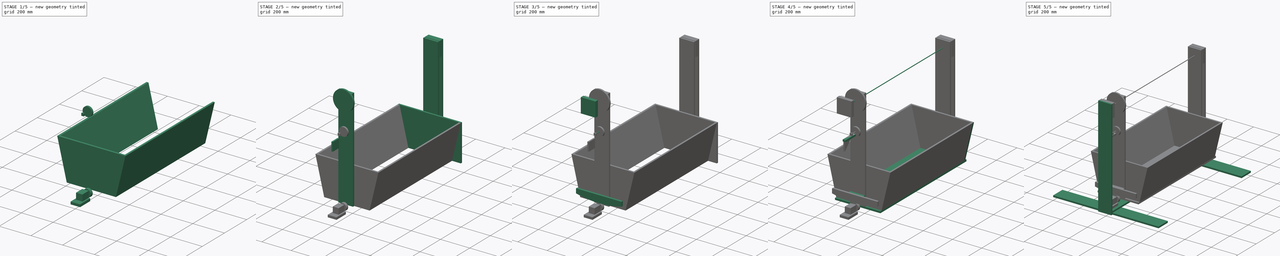
[diagram: build sequence overview — one tinted view per stage of 5, left to right]
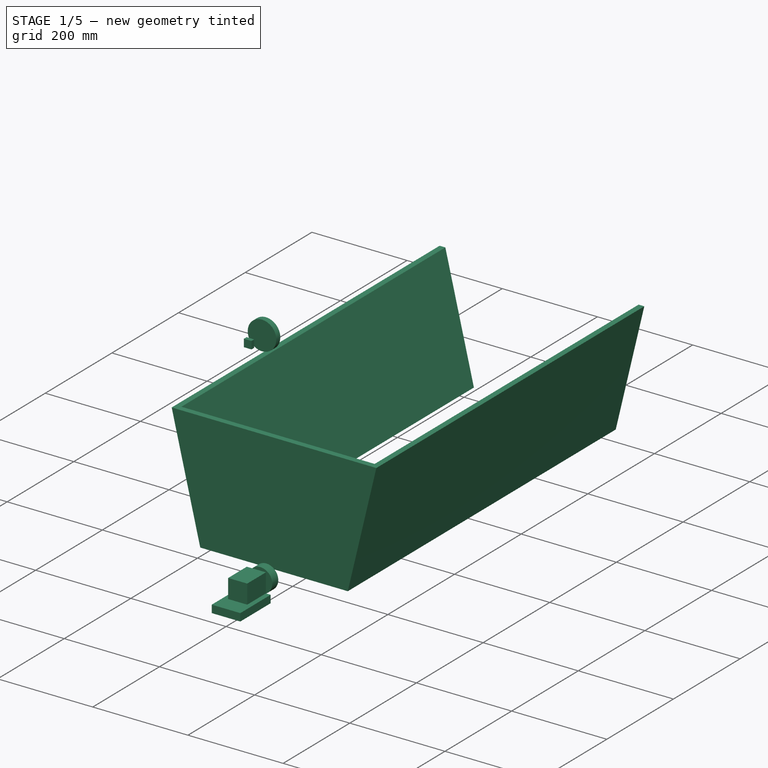
[diagram: stage 1 of 5 — iso view after this stage's code; geometry added in this stage tinted green]
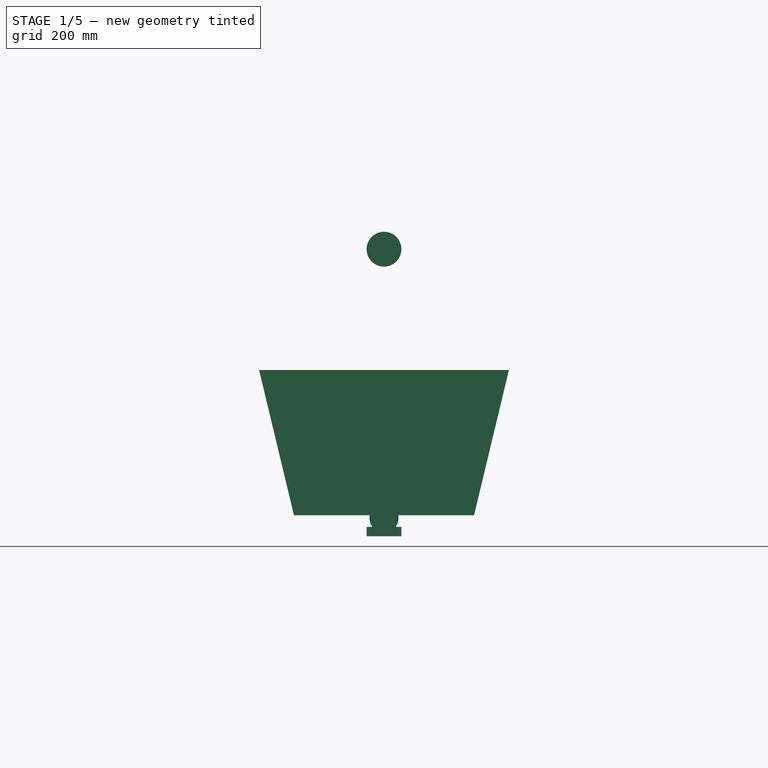
[diagram: stage 1 of 5 — front view after this stage's code; geometry added in this stage tinted green]
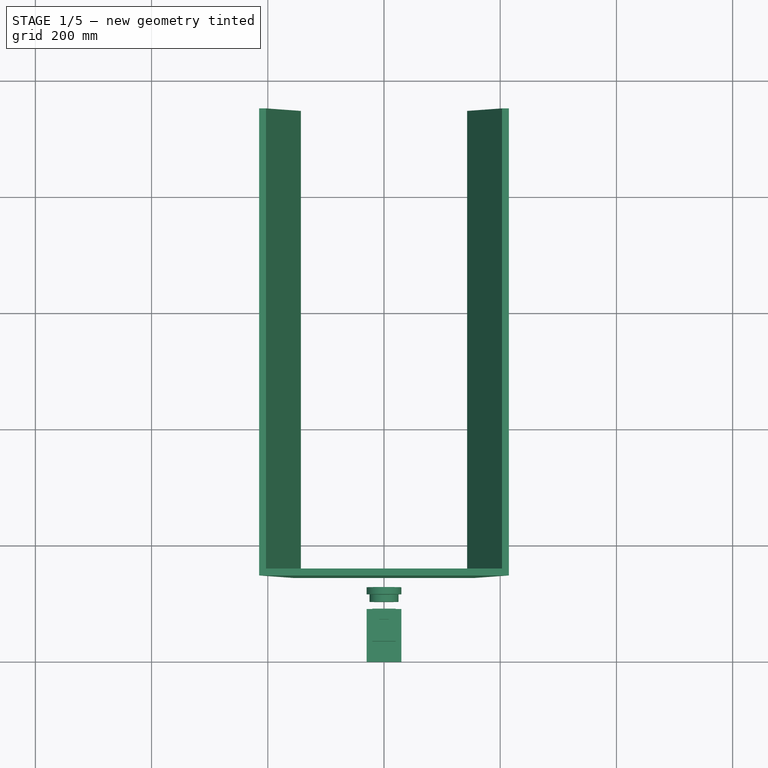
[diagram: stage 1 of 5 — top view after this stage's code; geometry added in this stage tinted green]
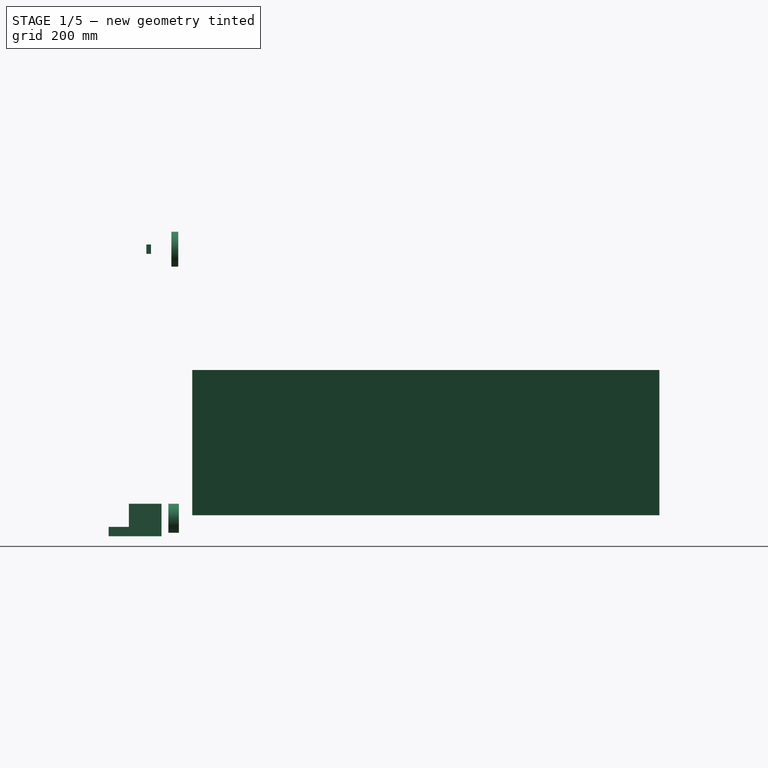
[diagram: stage 1 of 5 — right view after this stage's code; geometry added in this stage tinted green]
FCSTD DOCUMENT  (FreeCAD 0.15R4671 (Git))
Label: Wiege_CAD_Model
License: All rights reserved
LicenseURL: http://en.wikipedia.org/wiki/All_rights_reserved
objects: Part::Box×22, App::DocumentObjectGroup×19, Sketcher::SketchObject×16, PartDesign::Pocket×13, Part::Cylinder×5, App::FeaturePython×4, Drawing::FeatureViewPython×4, PartDesign::Pad×3, Drawing::FeaturePage×3, Part::MultiCommon×1
note: 80 computed .brp shape members not serialized (recipe doc carries the construction recipe); baked Part::Feature solids carry a one-line shape summary decoded from their .brp

FEATURE [App::DocumentObjectGroup] Gruppe006  label="Drehachse_Gruppe"
  Group = -> [Cylinder]
FEATURE [Part::Box] Box016  label="Wand L1"
  Height = 250
  Length = 430
  Placement = pos=(185,144,60) rot=(0,0,1;0rad)
  Width = 12
FEATURE [Sketcher::SketchObject] Sketch012  label="Zuschnitt_Wand_L1"
  Placement = pos=(185,144,60) rot=(1,0,0;1.5708rad)
  Support = -> Box016 [Face3]
  sketch-geometry (6):
    g0: LineSegment StartX=0 StartY=250 StartZ=0 EndX=0 EndY=0 EndZ=0
    g1: LineSegment StartX=0 StartY=0 StartZ=0 EndX=60 EndY=0 EndZ=0
    g2: LineSegment StartX=60 StartY=0 StartZ=0 EndX=0 EndY=250 EndZ=0
    g3: LineSegment StartX=430 StartY=250 StartZ=0 EndX=430 EndY=0 EndZ=0
    g4: LineSegment StartX=430 StartY=0 StartZ=0 EndX=370 EndY=0 EndZ=0
    g5: LineSegment StartX=370 StartY=0 StartZ=0 EndX=430 EndY=250 EndZ=0
  constraints (12):
    c: Coincident(g0,g-1)
    c: Vertical(g0)
    c: Coincident(g0,g1)
    c: Horizontal(g1)
    c: Coincident(g1,g2)
    c: Coincident(g2,g0)
    c: Vertical(g3)
    c: Coincident(g3,g4)
    c: PointOnObject(g4,g-1)
    c: Horizontal(g4)
    c: Coincident(g4,g5)
    c: Coincident(g5,g3)
FEATURE [PartDesign::Pocket] Pocket012  label="Tasche_Zuschnitt_Wand_L1"
  Length = 12
  Placement = pos=(185,144,60) rot=(0,0,1;0rad)
  Sketch = -> Sketch012
  Type = 0
FEATURE [Part::Box] Box027  label="Potentiometer_Block"
  Height = 16
  Length = 16
  Placement = pos=(392,65,510) rot=(0,0,1;0rad)
  Width = 8
FEATURE [Part::Cylinder] Cylinder003  label="Poti_Antrieb"
  Angle = 360
  Height = 12
  Placement = pos=(400,120,518) rot=(1,0,0;1.5708rad)
  Radius = 30
FEATURE [Part::Box] Box028  label="Motor_Block"
  Height = 40
  Length = 40
  Placement = pos=(380,35,40) rot=(0,0,1;0rad)
  Width = 56
FEATURE [Part::Cylinder] Cylinder004  label="Antriebsrad"
  Angle = 360
  Height = 18
  Placement = pos=(400,121,55) rot=(1,0,0;1.5708rad)
  Radius = 25
FEATURE [App::DocumentObjectGroup] Group002  label="Basis_Objekte_G"
  Group = -> [Box010,Box006]
FEATURE [App::DocumentObjectGroup] Gruppe002  label="Träger_Gruppe_G"
  Group = -> [Pocket002,Pocket003,Group002,Box009]
FEATURE [App::DocumentObjectGroup] Group003  label="Basis_Objekte_H"
  Group = -> [Box012,Box011,Box013]
FEATURE [App::DocumentObjectGroup] Gruppe003  label="Träger_Gruppe_H"
  Group = -> [Pocket005,Pocket006,Group003]
FEATURE [App::DocumentObjectGroup] Group004  label="Basis_Objekte_C"
  Group = -> [Box014]
FEATURE [App::DocumentObjectGroup] Gruppe004  label="Halterung_Gruppe_C"
  Group = -> [Pocket007,Group004]
FEATURE [App::DocumentObjectGroup] Group005  label="Basis_Objekte_D"
  Group = -> [Box021,Box015]
FEATURE [App::DocumentObjectGroup] Gruppe005  label="Halterung_Gruppe_D"
  Group = -> [Pocket008,Pocket010,Group005]
FEATURE [App::DocumentObjectGroup] Group006  label="Basis_Objekte_Kiste"
  Group = -> [Box016,Box024]
FEATURE [App::DocumentObjectGroup] Group007  label="Basis_Objekte_W"
  Group = -> [Box023,Cylinder003,Cylinder001,Box027]
FEATURE [App::DocumentObjectGroup] Gruppe008  label="Winkelabnehmer_Gruppe"
  Group = -> [Pocket009,Box022,Pocket011,Pad001,Pocket014,Group007]
FEATURE [App::DocumentObjectGroup] Group008  label="Basis_Objekte_Motor"
  Group = -> [Box028]
FEATURE [Sketcher::SketchObject] Sketch019  label="Sketch_Wand_K1_K2"
  Placement = pos=(185,156,60) rot=(0,0.707107,0.707107;3.14159rad)
  Support = -> Pocket012 [Face4]
  sketch-geometry (8):
    g0: LineSegment StartX=-60 StartY=0 StartZ=0 EndX=-72 EndY=0 EndZ=0
    g1: LineSegment StartX=-72 StartY=0 StartZ=0 EndX=-12 EndY=250 EndZ=0
    g2: LineSegment StartX=-12 StartY=250 StartZ=0 EndX=0 EndY=250 EndZ=0
    g3: LineSegment StartX=0 StartY=250 StartZ=0 EndX=-60 EndY=0 EndZ=0
    g4: LineSegment StartX=-370 StartY=0 StartZ=0 EndX=-430 EndY=250 EndZ=0
    g5: LineSegment StartX=-430 StartY=250 StartZ=0 EndX=-418 EndY=250 EndZ=0
    g6: LineSegment StartX=-418 StartY=250 StartZ=0 EndX=-358 EndY=0 EndZ=0
    g7: LineSegment StartX=-358 StartY=0 StartZ=0 EndX=-370 EndY=0 EndZ=0
  constraints (13):
    c: PointOnObject(g0,g-1)
    c: Horizontal(g0)
    c: Coincident(g0,g1)
    c: Coincident(g1,g2)
    c: Horizontal(g2)
    c: Coincident(g2,g3)
    c: Coincident(g3,g0)
    c: Coincident(g4,g5)
    c: Horizontal(g5)
    c: Coincident(g5,g6)
    c: Coincident(g6,g7)
    c: Coincident(g7,g4)
    c: Horizontal(g7)
FEATURE [PartDesign::Pad] Pad  label="Pad_Wand_K1_K2"
  Length = 792
  Length2 = 100
  Placement = pos=(185,144,60) rot=(0,0,1;0rad)
  Sketch = -> Sketch019
  Type = 0
FEATURE [App::DocumentObjectGroup] Gruppe007  label="Kiste_Gruppe"
  Group = -> [Box020,Pocket012,Pocket013,Box026,Common,Group006,Pad]
FEATURE [Sketcher::SketchObject] Sketch020  label="Bohrloch_Antriebsrad"
  Placement = pos=(400,121,55) rot=(-1,0,0;1.5708rad)
  Support = -> Cylinder004 [Face3]
  sketch-geometry (1):
    g0: Circle CenterX=0 CenterY=0 CenterZ=0 NormalX=0 NormalY=0 NormalZ=1 Radius=3
  constraints (1):
    c: Coincident(g0,g-1)
FEATURE [PartDesign::Pocket] Pocket015  label="Tasche_Bohrloch_Antriebsrad"
  Length = 20
  Placement = pos=(400,121,55) rot=(1,0,0;1.5708rad)
  Sketch = -> Sketch020
  Type = 0
FEATURE [Part::Box] Box029  label="Motor_Unterlage"
  Height = 16
  Length = 60
  Placement = pos=(370,0,24) rot=(0,0,1;0rad)
  Width = 91
FEATURE [App::DocumentObjectGroup] Gruppe009  label="Antrieb_Gruppe"
  Group = -> [Pad002,Cylinder004,Group008,Pocket015,Box029]
FEATURE [App::DocumentObjectGroup] Group  label="Wiege"
  Group = -> [Gruppe,Gruppe002,Gruppe003,Gruppe004,Gruppe005,Gruppe006,Gruppe007,Gruppe008,Gruppe009]
FEATURE [App::FeaturePython] Section  label="Antrieb_Section"  # WARN: FeaturePython — macro-defined, semantics opaque (R4)
  Objects = -> [Group]
  OnlySolids = true
  Placement = pos=(332.702,99.2869,302.305) rot=(1,0,0;1.5708rad)
FEATURE [App::FeaturePython] Section001  label="Front_Section"  # WARN: FeaturePython — macro-defined, semantics opaque (R4)
  Objects = -> [Group]
  OnlySolids = true
  Placement = pos=(0,-906.259,296.188) rot=(1,0,0;1.5708rad)
FEATURE [App::FeaturePython] Section002  label="Seite_Section"  # WARN: FeaturePython — macro-defined, semantics opaque (R4)
  Objects = -> [Group,Box,Box001,Box002]
  OnlySolids = true
  Placement = pos=(898.959,489.482,306.294) rot=(0,1,0;1.5708rad)
FEATURE [Drawing::FeatureViewPython] View002  label="Rechts"  # drawing view (typed FeaturePython)
  FontSize = 12
  LineWidth = 0.35
  RenderingMode = 1
  Rotation = 270
  Scale = 0.2
  ShowCut = false
  Source = -> Section002
  ViewResult = <blob: 8508 chars omitted>
  Visible = true
  X = 100
  Y = 200
FEATURE [Drawing::FeaturePage] Page001  label="Seite"
  EditableTexts = Marc Baumgartner | 11.08.2015 | 11.08.2015 | 1:5 | 1 | Kinderwiege mit Antrieb | Ansicht von Rechts
  Group = -> [View002]
  Template = C:/Program Files/FreeCAD 0.15/data/Mod/Drawing/Templates/A3_Landscape.svg
FEATURE [App::FeaturePython] Section003  label="Oben_Section"  # WARN: FeaturePython — macro-defined, semantics opaque (R4)
  Objects = -> [Group,Box,Box001,Box002]
  OnlySolids = true
  Placement = pos=(25.8079,-68.9257,1200) rot=(0,0,1;1.5708rad)
FEATURE [App::DocumentObjectGroup] Group009  label="Sections"
  Group = -> [Section,Section001,Section002,Section003]
FEATURE [Drawing::FeatureViewPython] View004  label="Top"  # drawing view (typed FeaturePython)
  FontSize = 12
  LineWidth = 0.35
  RenderingMode = 1
  Rotation = 90
  Scale = 0.2
  ShowCut = false
  Source = -> Section003
  ViewResult = <blob: 6379 chars omitted>
  Visible = true
  X = 100
  Y = 30
FEATURE [Drawing::FeaturePage] Page002  label="Oben"
  EditableTexts = Marc Baumgartner | 11.08.2015 | 11.08.2015 | 1:5 | 1 | Kinderwiege mit Antrieb | Ansicht von Oben
  Group = -> [View004]
  Template = C:/Program Files/FreeCAD 0.15/data/Mod/Drawing/Templates/A3_Landscape.svg
FEATURE [Drawing::FeatureViewPython] View  label="Front"  # drawing view (typed FeaturePython)
  FontSize = 12
  LineWidth = 0.35
  RenderingMode = 1
  Rotation = 90
  Scale = 0.2
  ShowCut = false
  Source = -> Section001
  ViewResult = <blob: 2854 chars omitted>
  Visible = true
  X = 30
  Y = 200
FEATURE [Drawing::FeatureViewPython] View005  label="Antrieb"  # drawing view (typed FeaturePython)
  FontSize = 12
  LineWidth = 0.35
  RenderingMode = 1
  Rotation = 90
  Scale = 0.2
  ShowCut = false
  Source = -> Section
  ViewResult = <blob: 4325 chars omitted>
  Visible = true
  X = 230
  Y = 200
FEATURE [Drawing::FeaturePage] Page  label="Frontal"
  EditableTexts = Marc Baumgartner | 11.08.2015 | 11.08.2015 | 1:5 | 1 | 1 | Kinderwiege mit Antrieb | Frontansicht und Antrieb
  Group = -> [View,View005]
  Template = C:/Program Files/FreeCAD 0.15/data/Mod/Drawing/Templates/A3_Landscape.svg
FEATURE [App::DocumentObjectGroup] Group010  label="Zeichnungen"
  Group = -> [Page001,Page,Page002]
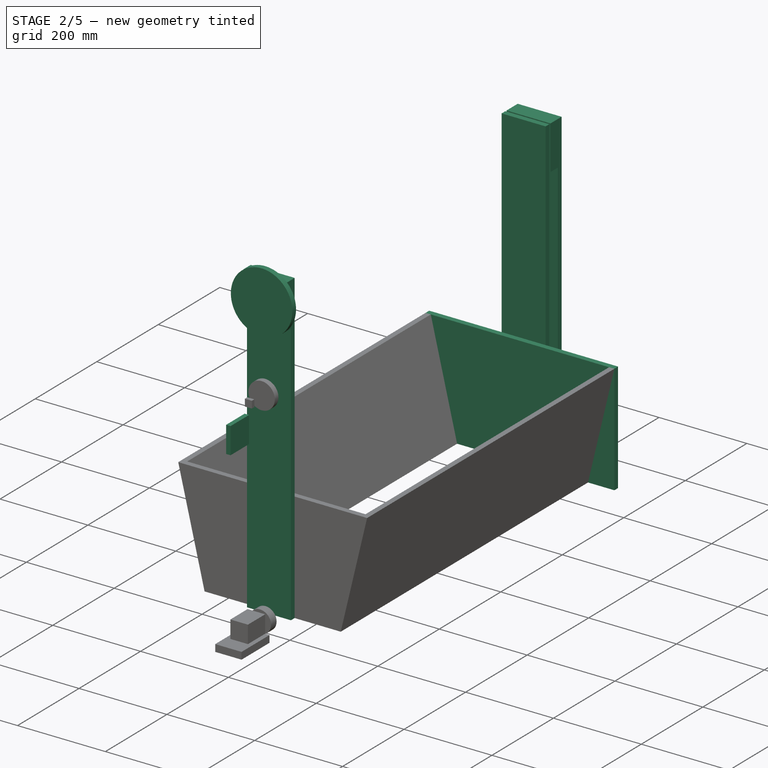
[diagram: stage 2 of 5 — iso view after this stage's code; geometry added in this stage tinted green]
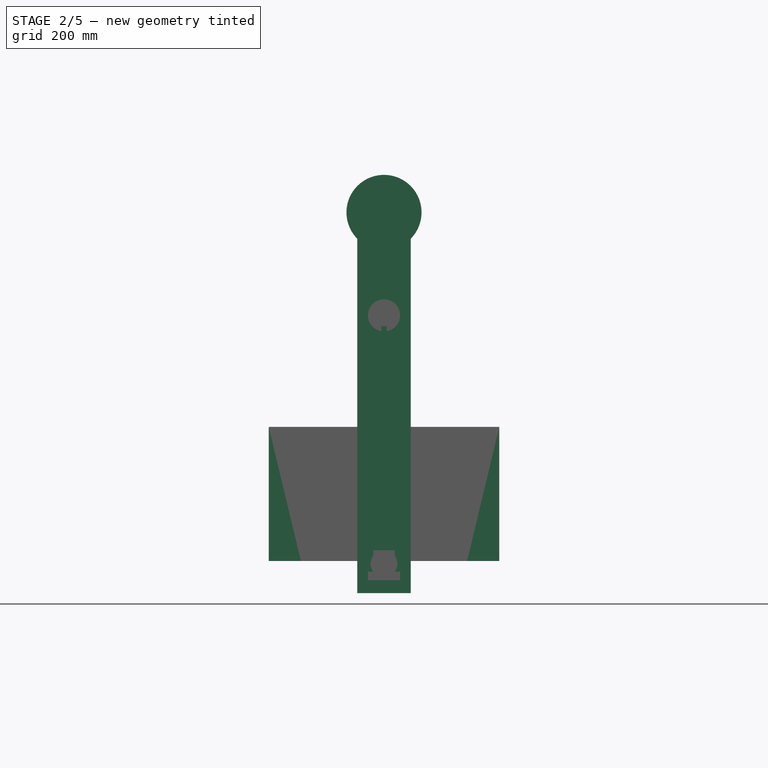
[diagram: stage 2 of 5 — front view after this stage's code; geometry added in this stage tinted green]
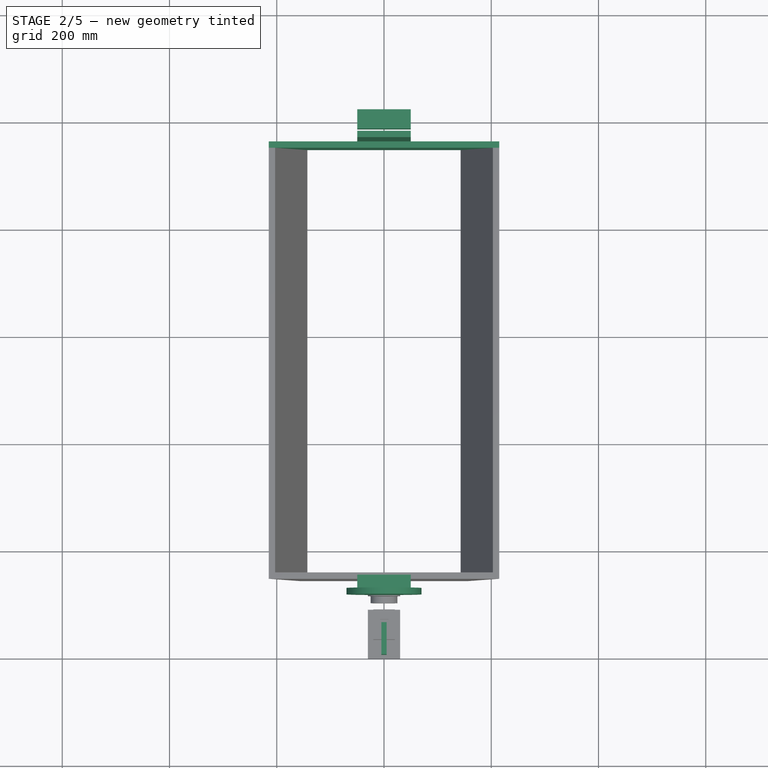
[diagram: stage 2 of 5 — top view after this stage's code; geometry added in this stage tinted green]
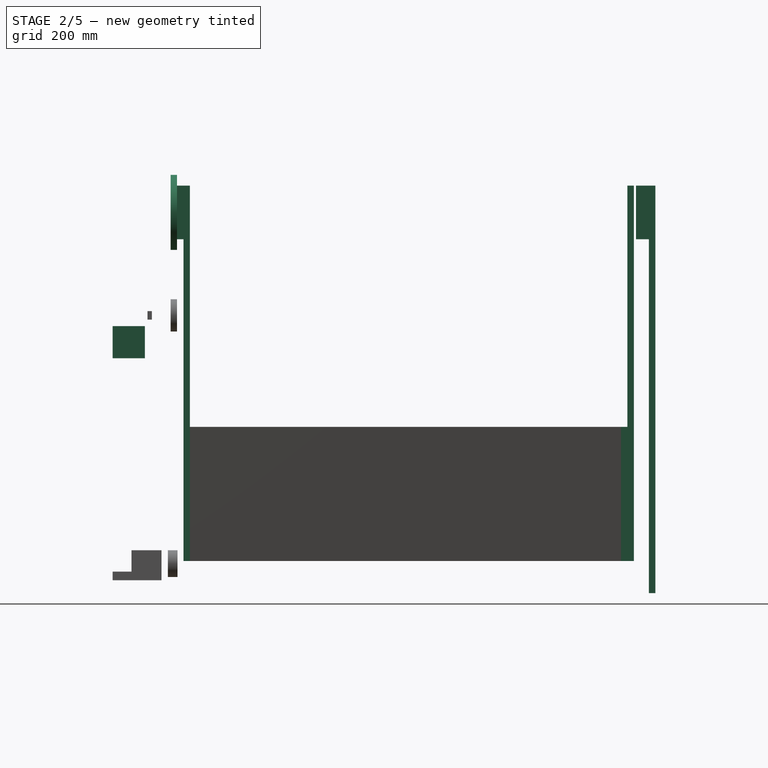
[diagram: stage 2 of 5 — right view after this stage's code; geometry added in this stage tinted green]
FEATURE [Part::Box] Box011  label="Platte H1"
  Height = 100
  Length = 100
  Placement = pos=(350,988,660) rot=(0,0,1;0rad)
  Width = 12
FEATURE [Sketcher::SketchObject] Sketch005  label="Bohrloch G004"
  Placement = pos=(350,1000,660) rot=(0,0.707107,0.707107;3.14159rad)
  Support = -> Box011 [Face4]
  sketch-geometry (1):
    g0: Circle CenterX=-50 CenterY=50 CenterZ=0 NormalX=0 NormalY=0 NormalZ=1 Radius=4
FEATURE [Part::Box] Box012  label="Träger H"
  Height = 760
  Length = 100
  Placement = pos=(350,1000,0) rot=(0,0,1;0rad)
  Width = 12
FEATURE [Part::Box] Box013  label="Platte H2"
  Height = 100
  Length = 100
  Placement = pos=(350,976,660) rot=(0,0,1;0rad)
  Width = 12
FEATURE [Part::Box] Box014  label="Halterung C"
  Height = 700
  Length = 100
  Placement = pos=(350,960,60) rot=(0,0,1;0rad)
  Width = 12
FEATURE [Part::Box] Box015  label="Halterung D"
  Height = 700
  Length = 100
  Placement = pos=(350,132,60) rot=(0,0,1;0rad)
  Width = 12
FEATURE [Part::Cylinder] Cylinder001  label="Winkelabnehmer"
  Angle = 360
  Height = 12
  Placement = pos=(400,120,710) rot=(1,0,0;1.5708rad)
  Radius = 70
FEATURE [Part::Box] Box021  label="Platte D1"
  Height = 100
  Length = 100
  Placement = pos=(350,120,660) rot=(0,0,1;0rad)
  Width = 12
FEATURE [Part::Box] Box023  label="Poti_Halterung_Stütze"
  Height = 60
  Length = 10
  Placement = pos=(395,0,438) rot=(0,0,1;0rad)
  Width = 60
FEATURE [Part::Box] Box024  label="Wand L2"
  Height = 250
  Length = 430
  Placement = pos=(185,948,60) rot=(0,0,1;0rad)
  Width = 12
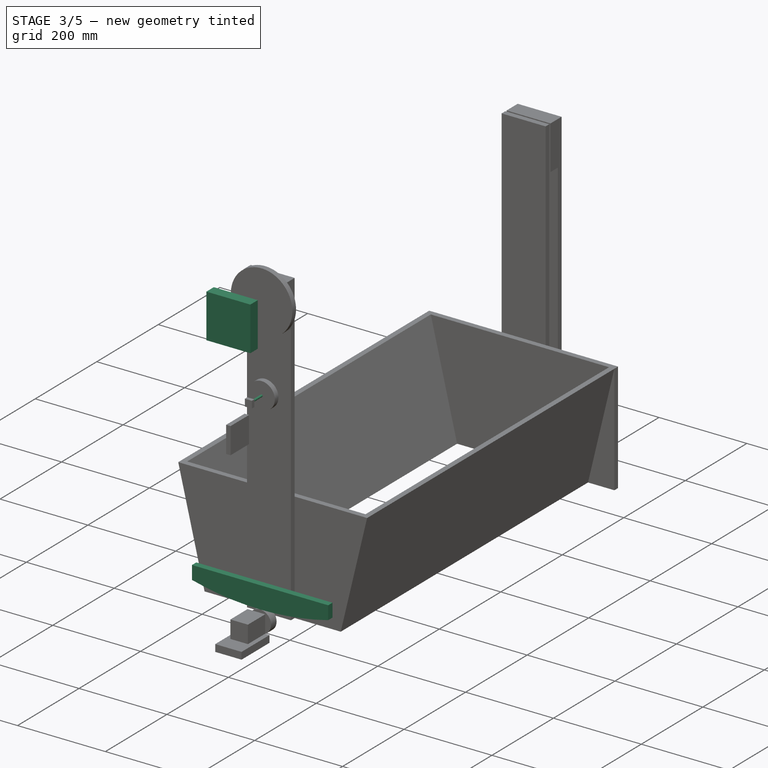
[diagram: stage 3 of 5 — iso view after this stage's code; geometry added in this stage tinted green]
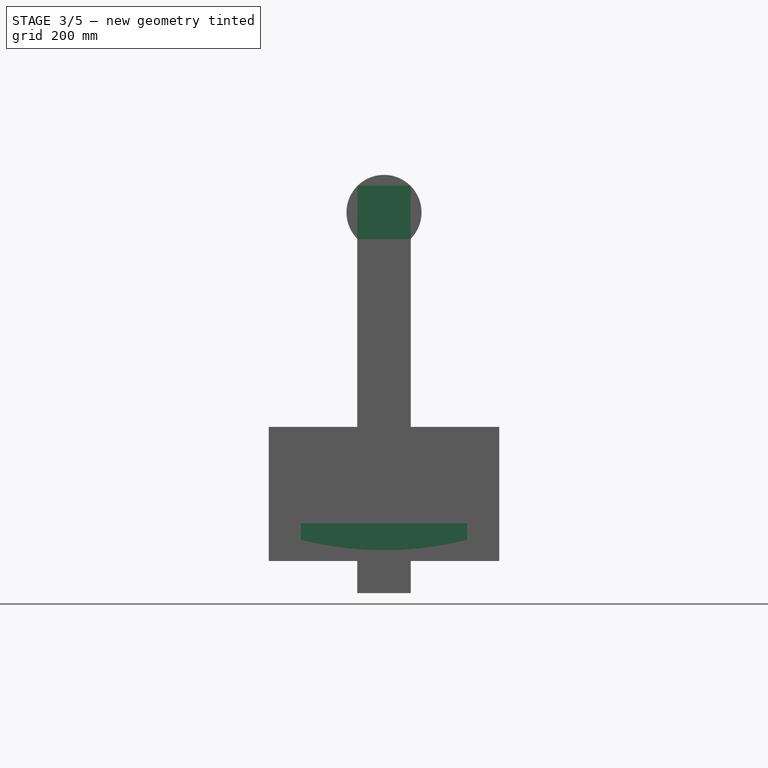
[diagram: stage 3 of 5 — front view after this stage's code; geometry added in this stage tinted green]
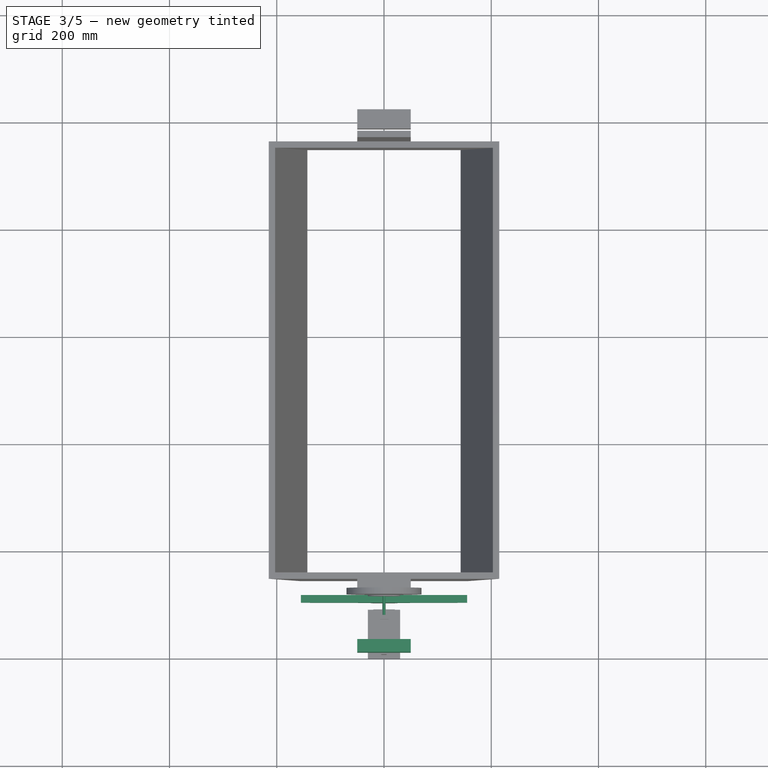
[diagram: stage 3 of 5 — top view after this stage's code; geometry added in this stage tinted green]
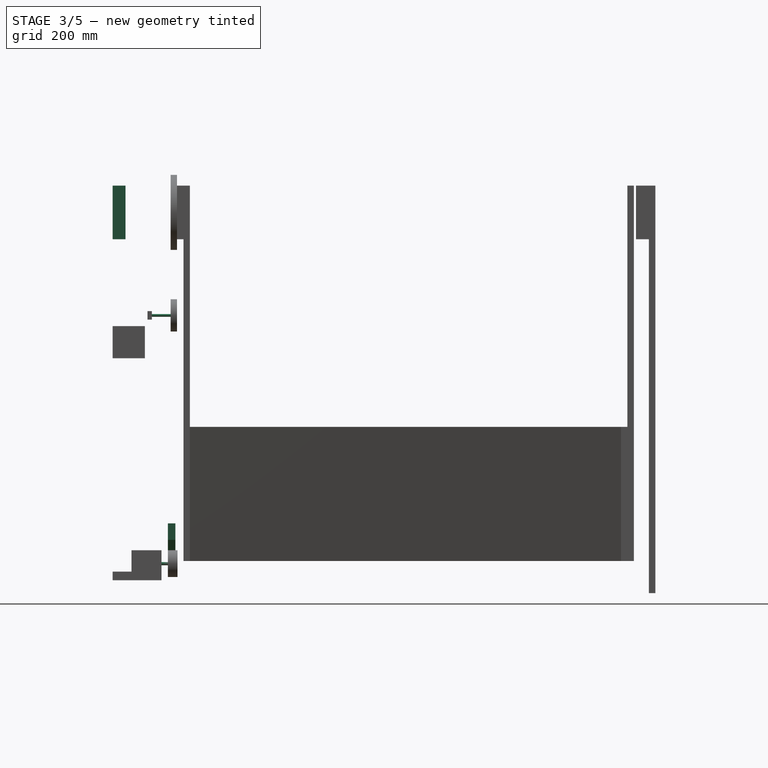
[diagram: stage 3 of 5 — right view after this stage's code; geometry added in this stage tinted green]
FEATURE [App::DocumentObjectGroup] Gruppe  label="Boden_Gruppe"
  Group = -> [Box,Box001,Box002]
FEATURE [Part::Box] Box006  label="Platte G2"
  Height = 100
  Length = 100
  Placement = pos=(350,12,660) rot=(0,0,1;0rad)
  Width = 12
FEATURE [Part::Box] Box010  label="Platte G1"
  Height = 100
  Length = 100
  Placement = pos=(350,0,660) rot=(0,0,1;0rad)
  Width = 12
FEATURE [Part::Box] Box025  label="Grundform_Antriebskulisse"
  Height = 310
  Length = 50
  Placement = pos=(245,102,130) rot=(0,1,0;1.5708rad)
  Width = 15
FEATURE [Part::Cylinder] Cylinder002  label="Rundung_Antriebskulisse"
  Angle = 360
  Height = 15
  Placement = pos=(400,118,710) rot=(1,0,0;1.5708rad)
  Radius = 630
FEATURE [Part::MultiCommon] Common  label="Antriebskulisse"
  Shapes = -> [Box025,Cylinder002]
FEATURE [Sketcher::SketchObject] Sketch015
  Placement = pos=(392,73,510) rot=(0,0.707107,0.707107;3.14159rad)
  Support = -> Box027 [Face4]
  sketch-geometry (1):
    g0: Circle CenterX=-8 CenterY=8 CenterZ=0 NormalX=0 NormalY=0 NormalZ=1 Radius=2.51917
FEATURE [PartDesign::Pad] Pad001  label="Poti"
  Length = 46
  Length2 = 100
  Placement = pos=(392,65,510) rot=(0,0,1;0rad)
  Sketch = -> Sketch015
  Type = 0
FEATURE [Sketcher::SketchObject] Sketch016  label="Bohrloch Winkelabnehmer001"
  Placement = pos=(400,108,518) rot=(1,0,0;1.5708rad)
  Support = -> Cylinder003 [Face2]
  sketch-geometry (1):
    g0: Circle CenterX=0 CenterY=0 CenterZ=0 NormalX=0 NormalY=0 NormalZ=1 Radius=2.5
  constraints (1):
    c: Radius(g0) = 2.5
FEATURE [PartDesign::Pocket] Pocket014  label="Tasche_Bohrloch_Poti_Antrieb"
  Length = 10
  Placement = pos=(400,120,518) rot=(1,0,0;1.5708rad)
  Sketch = -> Sketch016
  Type = 0
FEATURE [Sketcher::SketchObject] Sketch017
  Placement = pos=(380,91,40) rot=(0,0.707107,0.707107;3.14159rad)
  Support = -> Box028 [Face4]
  sketch-geometry (1):
    g0: Circle CenterX=-20 CenterY=15 CenterZ=0 NormalX=0 NormalY=0 NormalZ=1 Radius=3
FEATURE [PartDesign::Pad] Pad002  label="Motor_Block_mit_Achse"
  Length = 18
  Length2 = 100
  Placement = pos=(380,35,40) rot=(0,0,1;0rad)
  Sketch = -> Sketch017
  Type = 0
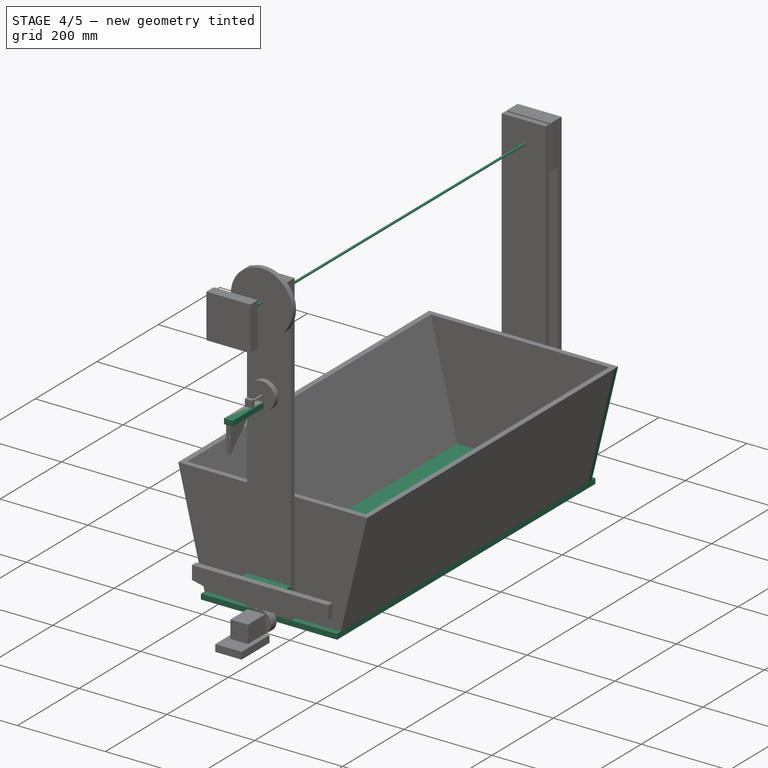
[diagram: stage 4 of 5 — iso view after this stage's code; geometry added in this stage tinted green]
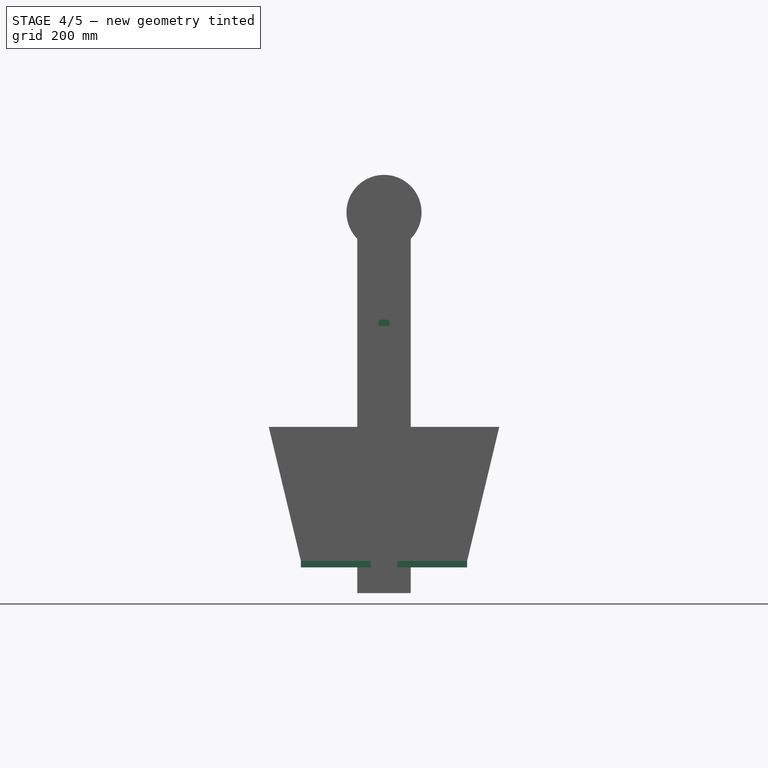
[diagram: stage 4 of 5 — front view after this stage's code; geometry added in this stage tinted green]
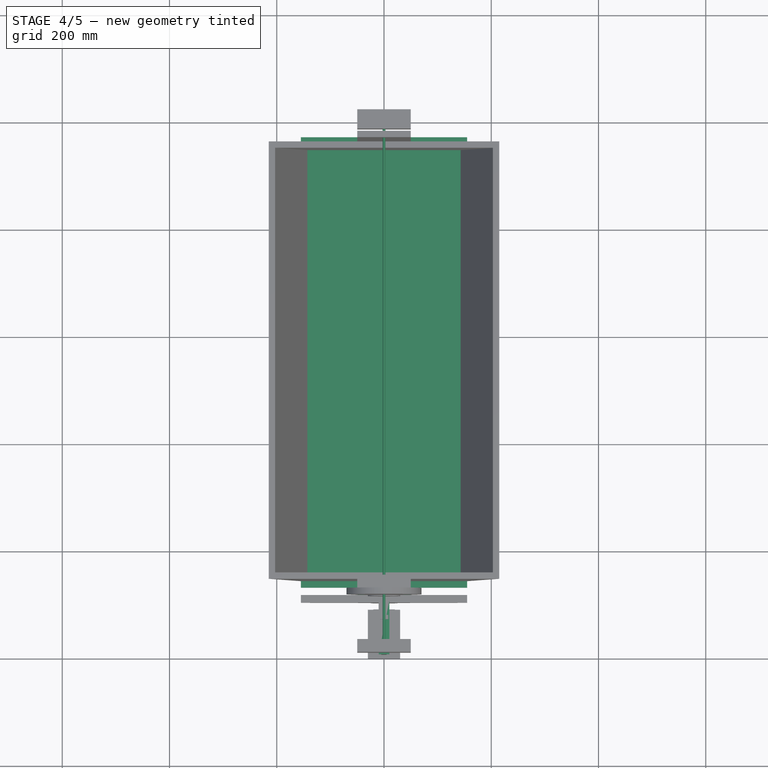
[diagram: stage 4 of 5 — top view after this stage's code; geometry added in this stage tinted green]
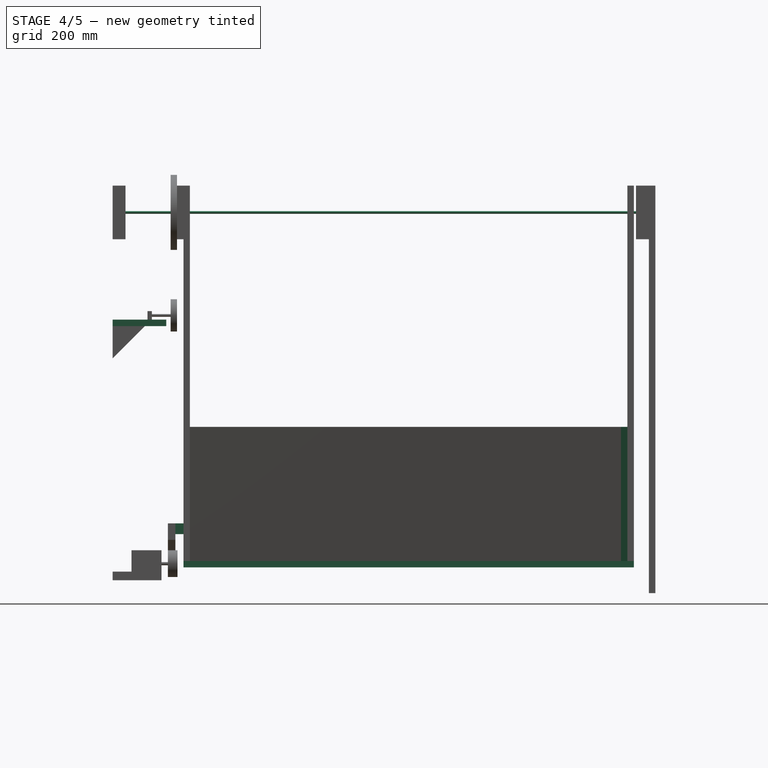
[diagram: stage 4 of 5 — right view after this stage's code; geometry added in this stage tinted green]
FEATURE [Sketcher::SketchObject] Sketch008  label="Skizze Bohrloch D"
  Placement = pos=(350,132,60) rot=(1,0,0;1.5708rad)
  Support = -> Box015 [Face3]
  sketch-geometry (1):
    g0: Circle CenterX=50 CenterY=710 CenterZ=0 NormalX=0 NormalY=0 NormalZ=1 Radius=4
FEATURE [PartDesign::Pocket] Pocket008  label="Tasche Halterung D"
  Length = 30
  Placement = pos=(350,132,60) rot=(0,0,1;0rad)
  Sketch = -> Sketch008
  Type = 0
FEATURE [Part::Cylinder] Cylinder  label="Drehachse"
  Angle = 360
  Height = 1000
  Placement = pos=(400,1000,710) rot=(1,0,0;1.5708rad)
  Radius = 2.5
FEATURE [Part::Box] Box020  label="Boden M"
  Height = 310
  Length = 12
  Placement = pos=(245,132,60) rot=(0,1,0;1.5708rad)
  Width = 840
FEATURE [Sketcher::SketchObject] Sketch009  label="Bohrloch Winkelabnehmer"
  Placement = pos=(400,108,710) rot=(1,0,0;1.5708rad)
  Support = -> Cylinder001 [Face2]
  sketch-geometry (1):
    g0: Circle CenterX=0 CenterY=0 CenterZ=0 NormalX=0 NormalY=0 NormalZ=1 Radius=2.5
  constraints (1):
    c: Radius(g0) = 2.5
FEATURE [PartDesign::Pocket] Pocket009  label="Tasche_Bohrloch_Winkelabnehmer"
  Length = 10
  Placement = pos=(400,120,710) rot=(1,0,0;1.5708rad)
  Sketch = -> Sketch009
  Type = 0
FEATURE [Sketcher::SketchObject] Sketch010  label="Bohrloch G006"
  Placement = pos=(350,132,660) rot=(0,0.707107,0.707107;3.14159rad)
  Support = -> Box021 [Face4]
  sketch-geometry (1):
    g0: Circle CenterX=-50 CenterY=50 CenterZ=0 NormalX=0 NormalY=0 NormalZ=1 Radius=4
FEATURE [PartDesign::Pocket] Pocket010  label="Tasche Bohrloch D1"
  Length = 10
  Placement = pos=(350,120,660) rot=(0,0,1;0rad)
  Sketch = -> Sketch010
  Type = 0
FEATURE [Part::Box] Box022  label="Poti_Halterung"
  Height = 12
  Length = 20
  Placement = pos=(390,0,498) rot=(0,0,1;0rad)
  Width = 100
FEATURE [Sketcher::SketchObject] Sketch011
  Placement = pos=(405,0,438) rot=(0.57735,0.57735,0.57735;2.0944rad)
  Support = -> Box023 [Face2]
  sketch-geometry (3):
    g0: LineSegment StartX=0 StartY=0 StartZ=0 EndX=60 EndY=60 EndZ=0
    g1: LineSegment StartX=60 StartY=60 StartZ=0 EndX=60 EndY=0 EndZ=0
    g2: LineSegment StartX=60 StartY=0 StartZ=0 EndX=0 EndY=0 EndZ=0
  constraints (6):
    c: Coincident(g-1,g0)
    c: Coincident(g0,g1)
    c: Vertical(g1)
    c: Coincident(g1,g2)
    c: Coincident(g2,g0)
    c: Horizontal(g2)
FEATURE [PartDesign::Pocket] Pocket011  label="Poti_Halterung_Zuschnitt"
  Length = 10
  Placement = pos=(395,0,438) rot=(0,0,1;0rad)
  Sketch = -> Sketch011
  Type = 0
FEATURE [Sketcher::SketchObject] Sketch013  label="Zuschnitt_Wand_L2"
  Placement = pos=(185,948,60) rot=(1,0,0;1.5708rad)
  Support = -> Box024 [Face3]
  sketch-geometry (6):
    g0: LineSegment StartX=0 StartY=250 StartZ=0 EndX=0 EndY=0 EndZ=0
    g1: LineSegment StartX=0 StartY=0 StartZ=0 EndX=60 EndY=0 EndZ=0
    g2: LineSegment StartX=60 StartY=0 StartZ=0 EndX=0 EndY=250 EndZ=0
    g3: LineSegment StartX=430 StartY=250 StartZ=0 EndX=430 EndY=0 EndZ=0
    g4: LineSegment StartX=430 StartY=0 StartZ=0 EndX=370 EndY=0 EndZ=0
    g5: LineSegment StartX=370 StartY=0 StartZ=0 EndX=430 EndY=250 EndZ=0
  constraints (12):
    c: Coincident(g0,g-1)
    c: Vertical(g0)
    c: Coincident(g0,g1)
    c: Horizontal(g1)
    c: Coincident(g1,g2)
    c: Coincident(g2,g0)
    c: Vertical(g3)
    c: Coincident(g3,g4)
    c: PointOnObject(g4,g-1)
    c: Horizontal(g4)
    c: Coincident(g4,g5)
    c: Coincident(g5,g3)
FEATURE [PartDesign::Pocket] Pocket013  label="Tasche_Zuschnitt_Wand_L2"
  Length = 12
  Placement = pos=(185,948,60) rot=(0,0,1;0rad)
  Sketch = -> Sketch013
  Type = 0
FEATURE [Part::Box] Box026  label="Befestigung_Antriebskulisse"
  Height = 100
  Length = 20
  Placement = pos=(350,117,130) rot=(0,1,0;1.5708rad)
  Width = 15
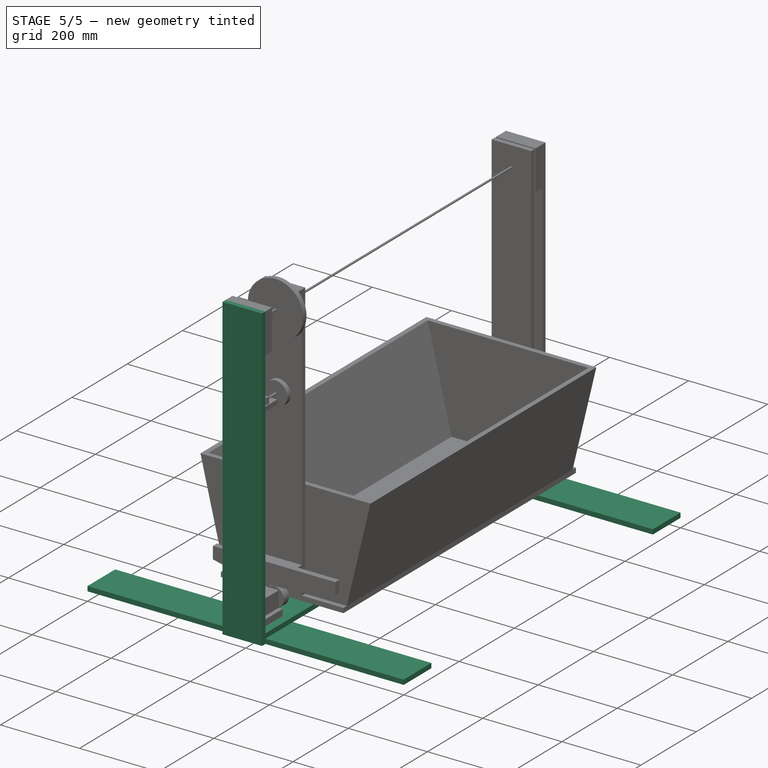
[diagram: stage 5 of 5 — iso view after this stage's code; geometry added in this stage tinted green]
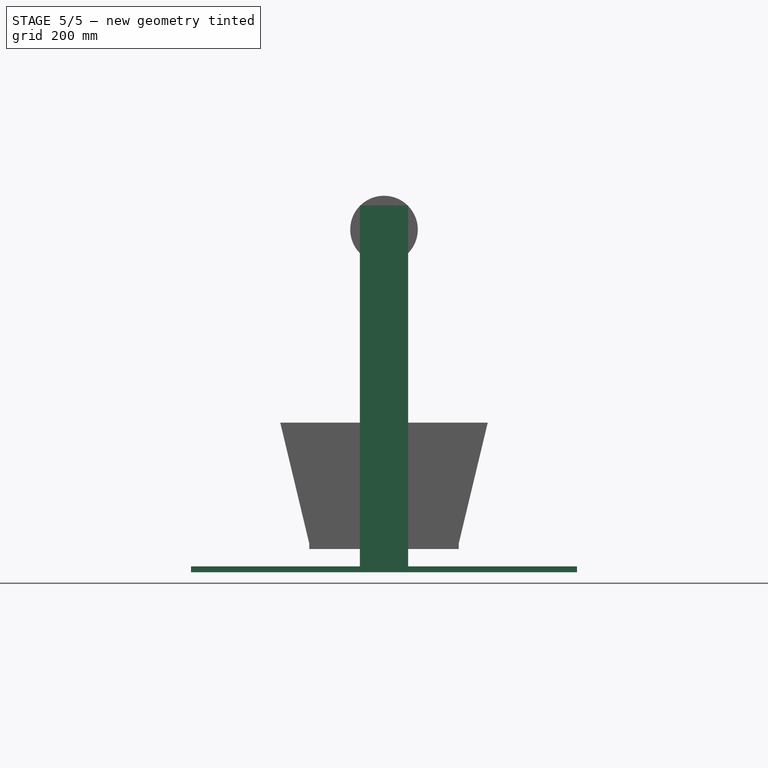
[diagram: stage 5 of 5 — front view after this stage's code; geometry added in this stage tinted green]
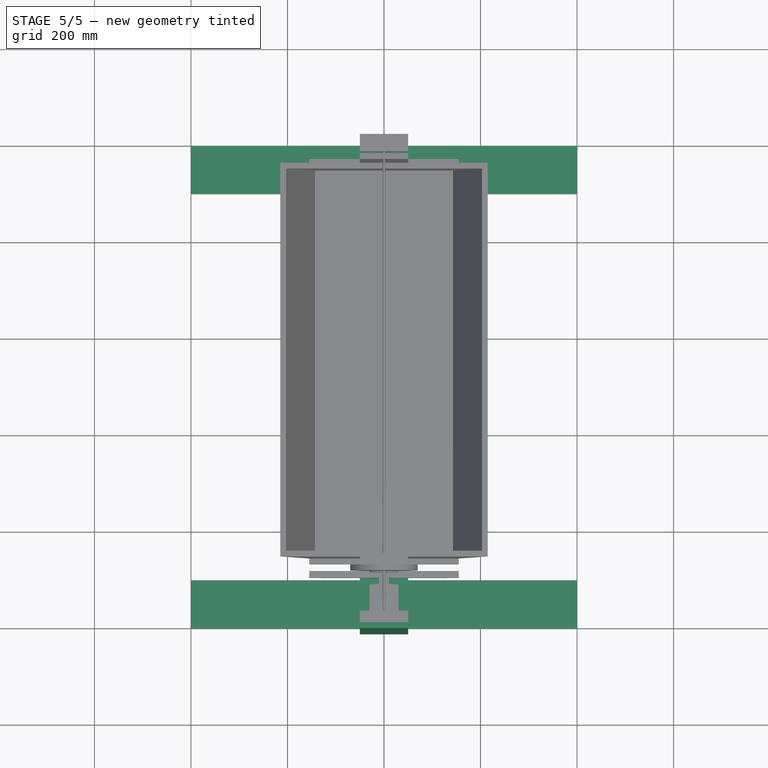
[diagram: stage 5 of 5 — top view after this stage's code; geometry added in this stage tinted green]
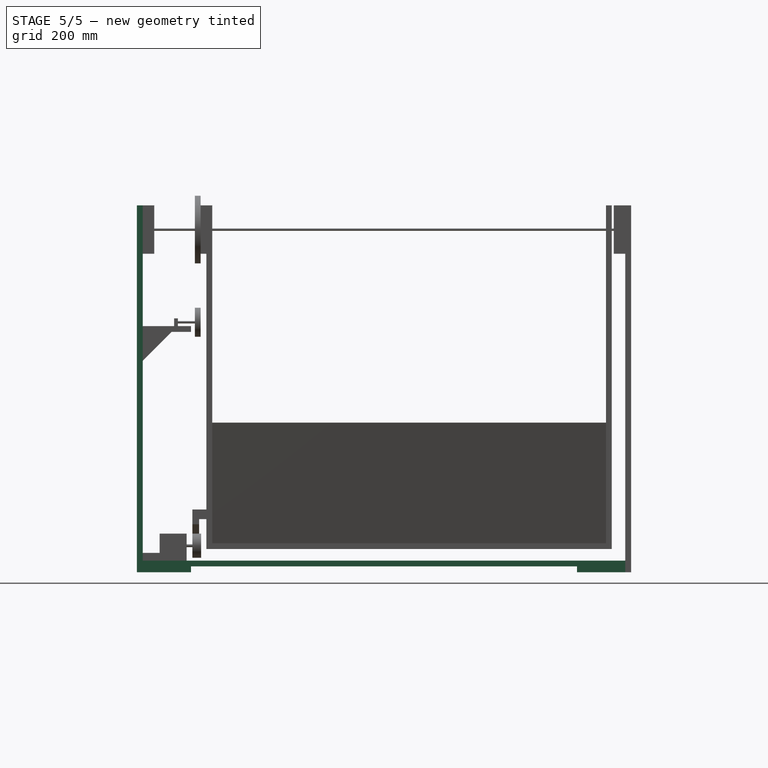
[diagram: stage 5 of 5 — right view after this stage's code; geometry added in this stage tinted green]
FEATURE [Part::Box] Box  label="Fuss A"
  Height = 12
  Length = 800
  Width = 100
FEATURE [Part::Box] Box001  label="Bodenplatte G"
  Height = 12
  Length = 100
  Placement = pos=(350,0,12) rot=(0,0,1;0rad)
  Width = 1000
FEATURE [Part::Box] Box002  label="Fuss B"
  Height = 12
  Length = 800
  Placement = pos=(0,900,0) rot=(0,0,1;0rad)
  Width = 100
FEATURE [Sketcher::SketchObject] Sketch002  label="Bohrloch G2"
  Placement = pos=(350,24,660) rot=(0,0.707107,0.707107;3.14159rad)
  Support = -> Box006 [Face4]
  sketch-geometry (1):
    g0: Circle CenterX=-50 CenterY=50 CenterZ=0 NormalX=0 NormalY=0 NormalZ=1 Radius=4
FEATURE [Part::Box] Box009  label="Träger G"
  Height = 760
  Length = 100
  Placement = pos=(350,-12,0) rot=(0,0,1;0rad)
  Width = 12
FEATURE [PartDesign::Pocket] Pocket002  label="Tasche Bohrloch G2"
  Length = 12
  Placement = pos=(350,12,660) rot=(0,0,1;0rad)
  Sketch = -> Sketch002
  Type = 0
FEATURE [Sketcher::SketchObject] Sketch003  label="Bohrloch G003"
  Placement = pos=(350,12,660) rot=(0,0.707107,0.707107;3.14159rad)
  Support = -> Box010 [Face4]
  sketch-geometry (1):
    g0: Circle CenterX=-50 CenterY=50 CenterZ=0 NormalX=0 NormalY=0 NormalZ=1 Radius=4
FEATURE [PartDesign::Pocket] Pocket003  label="Tasche Bohrloch G1"
  Length = 12
  Placement = pos=(350,0,660) rot=(0,0,1;0rad)
  Sketch = -> Sketch003
  Type = 0
FEATURE [PartDesign::Pocket] Pocket005  label="Tasche Bohrloch H1"
  Length = 10
  Placement = pos=(350,988,660) rot=(0,0,1;0rad)
  Sketch = -> Sketch005
  Type = 0
FEATURE [Sketcher::SketchObject] Sketch006  label="Bohrloch G005"
  Placement = pos=(350,988,660) rot=(0,0.707107,0.707107;3.14159rad)
  Support = -> Box013 [Face4]
  sketch-geometry (1):
    g0: Circle CenterX=-50 CenterY=50 CenterZ=0 NormalX=0 NormalY=0 NormalZ=1 Radius=4
FEATURE [PartDesign::Pocket] Pocket006  label="Tasche Bohrloch H2"
  Length = 12
  Placement = pos=(350,976,660) rot=(0,0,1;0rad)
  Sketch = -> Sketch006
  Type = 0
FEATURE [Sketcher::SketchObject] Sketch007  label="Skizze Bohrloch C"
  Placement = pos=(350,960,60) rot=(1,0,0;1.5708rad)
  Support = -> Box014 [Face3]
  sketch-geometry (1):
    g0: Circle CenterX=50 CenterY=710 CenterZ=0 NormalX=0 NormalY=0 NormalZ=1 Radius=4
FEATURE [PartDesign::Pocket] Pocket007  label="Tasche Halterung C"
  Length = 30
  Placement = pos=(350,960,60) rot=(0,0,1;0rad)
  Sketch = -> Sketch007
  Type = 0
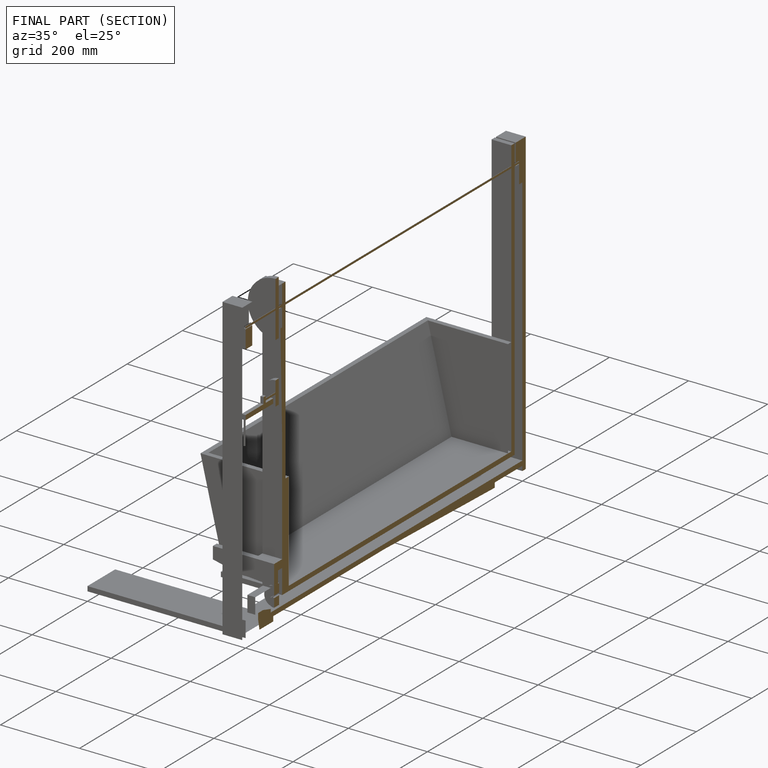
[diagram: finished part — half-section view (interior)]
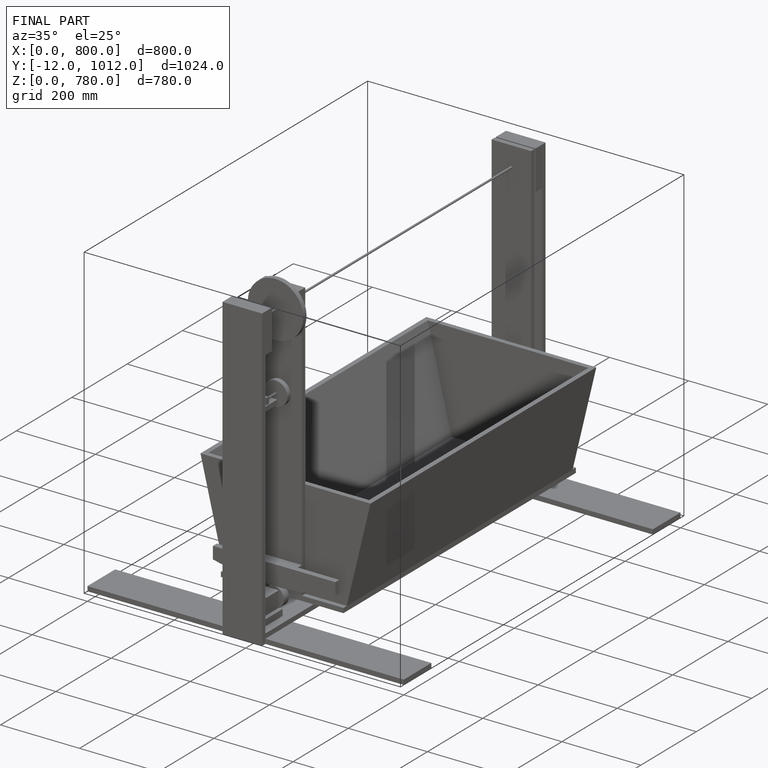
[diagram: finished part — iso view with bounding-box wireframe]
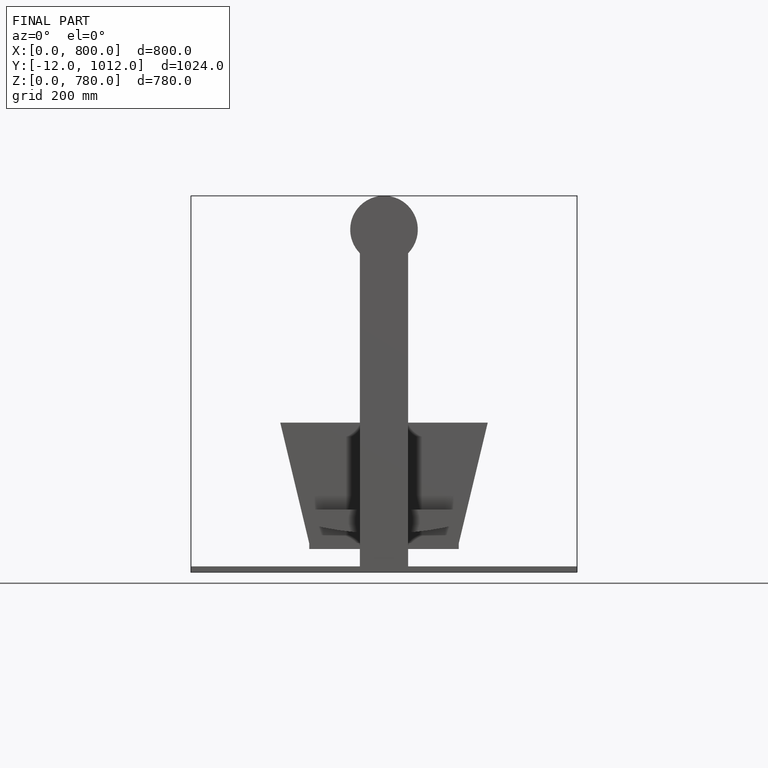
[diagram: finished part — front view with bounding-box wireframe]
